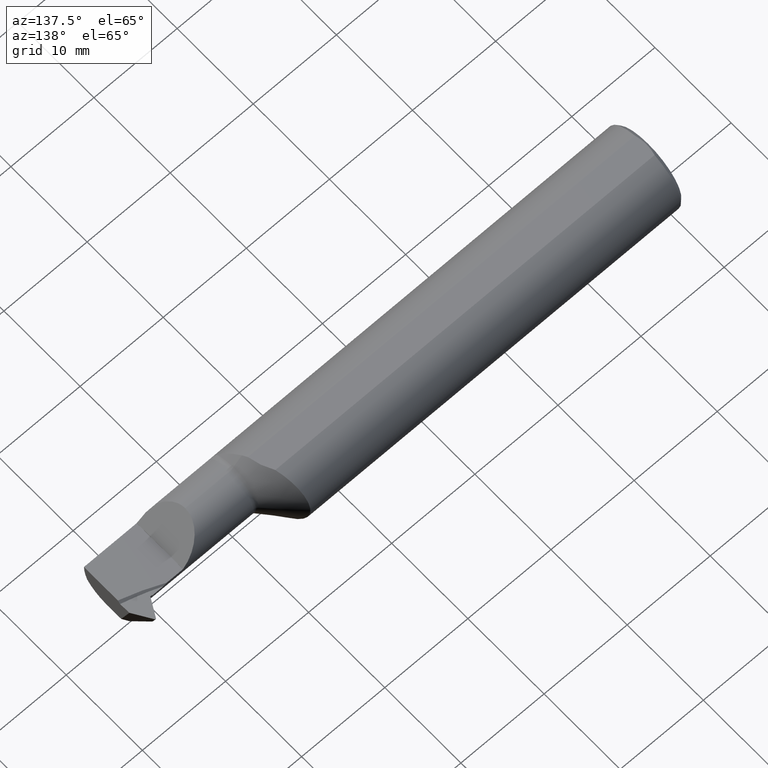
[diagram: clean part render]
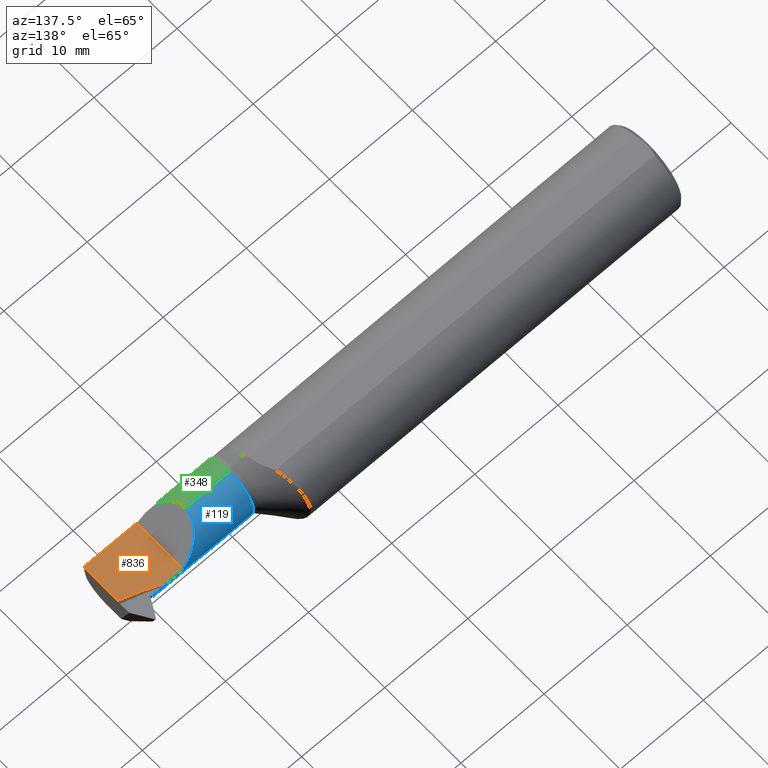
[diagram: same view with three faces highlighted in distinct colors, each labeled with its STEP entity id]
A machine part, auxiliary view with three faces highlighted in distinct colors.
Their STEP definitions:

[orange] entity #836 — the highlighted planar face has unit normal (-0, 0, -1).
#4 = ORIENTED_EDGE ( 'NONE', *, *, #408, .F. ) ;
#63 = CARTESIAN_POINT ( 'NONE',  ( 2.250000000000000000, -0.1873499999999999610, -6.429183357567478880E-17 ) ) ;
#65 = CARTESIAN_POINT ( 'NONE',  ( 2.250000000000000000, 0.2999999999999999889, -6.429183357567480113E-17 ) ) ;
#87 = EDGE_LOOP ( 'NONE', ( #4, #381, #551, #903, #669 ) ) ;
#95 = VECTOR ( 'NONE', #103, 39.37007874015748143 ) ;
#103 = DIRECTION ( 'NONE',  ( -0.000000000000000000, 1.000000000000000000, -0.000000000000000000 ) ) ;
#141 = VERTEX_POINT ( 'NONE', #500 ) ;
#160 = LINE ( 'NONE', #305, #419 ) ;
#179 = CARTESIAN_POINT ( 'NONE',  ( 2.250000000000000000, 0.2999999999999999889, -6.429183357567480113E-17 ) ) ;
#187 = EDGE_CURVE ( 'NONE', #141, #777, #1026, .T. ) ;
#230 = LINE ( 'NONE', #234, #667 ) ;
#234 = CARTESIAN_POINT ( 'NONE',  ( 2.500000000000000000, -0.1873499999999999888, -6.429183357567480113E-17 ) ) ;
#305 = CARTESIAN_POINT ( 'NONE',  ( 2.500000000000000000, 0.2999999999999999889, -6.429183357567480113E-17 ) ) ;
#309 = PLANE ( 'NONE',  #340 ) ;
#326 = CARTESIAN_POINT ( 'NONE',  ( 2.500000000000000000, -0.01210074471316514681, -6.429183357567480113E-17 ) ) ;
#330 = CARTESIAN_POINT ( 'NONE',  ( 2.500000000000000000, -0.1873499999999998222, -6.429183357567480113E-17 ) ) ;
#340 = AXIS2_PLACEMENT_3D ( 'NONE', #65, #476, #401 ) ;
#354 = DIRECTION ( 'NONE',  ( 1.000000000000000000, 0.000000000000000000, 0.000000000000000000 ) ) ;
#373 = EDGE_CURVE ( 'NONE', #457, #826, #160, .T. ) ;
#381 = ORIENTED_EDGE ( 'NONE', *, *, #187, .F. ) ;
#401 = DIRECTION ( 'NONE',  ( -1.000000000000000000, 0.000000000000000000, 0.000000000000000000 ) ) ;
#402 = CARTESIAN_POINT ( 'NONE',  ( 2.440786647543599308, 0.004644180403842076456, -6.829619984160658046E-17 ) ) ;
#408 = EDGE_CURVE ( 'NONE', #777, #826, #525, .T. ) ;
#419 = VECTOR ( 'NONE', #548, 39.37007874015748143 ) ;
#457 = VERTEX_POINT ( 'NONE', #330 ) ;
#476 = DIRECTION ( 'NONE',  ( -0.000000000000000000, 0.000000000000000000, -1.000000000000000000 ) ) ;
#500 = CARTESIAN_POINT ( 'NONE',  ( 2.250000000000000000, 0.05265000000000016889, -6.429183357567478880E-17 ) ) ;
#508 = LINE ( 'NONE', #179, #95 ) ;
#509 = EDGE_CURVE ( 'NONE', #1043, #141, #508, .T. ) ;
#525 =( BOUNDED_CURVE ( )  B_SPLINE_CURVE ( 3, ( #819, #715, #402, #326 ),
 .UNSPECIFIED., .F., .T. ) 
 B_SPLINE_CURVE_WITH_KNOTS ( ( 4, 4 ),
 ( 5.843042955691012175, 6.009244269921814485 ),
 .UNSPECIFIED. ) 
 CURVE ( )  GEOMETRIC_REPRESENTATION_ITEM ( )  RATIONAL_B_SPLINE_CURVE ( ( 1.000000000000000000, 0.9976994179840419363, 0.9976994179840419363, 1.000000000000000000 ) ) 
 REPRESENTATION_ITEM ( '' )  );
#548 = DIRECTION ( 'NONE',  ( -0.000000000000000000, 1.000000000000000000, -0.000000000000000000 ) ) ;
#551 = ORIENTED_EDGE ( 'NONE', *, *, #509, .F. ) ;
#625 = VECTOR ( 'NONE', #354, 39.37007874015748143 ) ;
#630 = CARTESIAN_POINT ( 'NONE',  ( 2.500000000000000000, -0.01210074471316514681, -6.429183357567480113E-17 ) ) ;
#667 = VECTOR ( 'NONE', #733, 39.37007874015748143 ) ;
#669 = ORIENTED_EDGE ( 'NONE', *, *, #373, .T. ) ;
#707 = CARTESIAN_POINT ( 'NONE',  ( 2.327514123660656242, 0.05265000000000125829, 1.698438635012499297E-16 ) ) ;
#715 = CARTESIAN_POINT ( 'NONE',  ( 2.383158777789711635, 0.02627753127285263959, -6.829619984160658046E-17 ) ) ;
#733 = DIRECTION ( 'NONE',  ( -1.000000000000000000, -0.000000000000000000, -0.000000000000000000 ) ) ;
#754 = EDGE_CURVE ( 'NONE', #457, #1043, #230, .T. ) ;
#777 = VERTEX_POINT ( 'NONE', #707 ) ;
#819 = CARTESIAN_POINT ( 'NONE',  ( 2.327514123660656242, 0.05265000000000125829, 1.698438635012499297E-16 ) ) ;
#826 = VERTEX_POINT ( 'NONE', #630 ) ;
#836 = ADVANCED_FACE ( 'NONE', ( #1054 ), #309, .F. ) ;
#903 = ORIENTED_EDGE ( 'NONE', *, *, #754, .F. ) ;
#932 = CARTESIAN_POINT ( 'NONE',  ( 1.905000000000000027, 0.05265000000000018970, -6.429183357567480113E-17 ) ) ;
#1026 = LINE ( 'NONE', #932, #625 ) ;
#1043 = VERTEX_POINT ( 'NONE', #63 ) ;
#1054 = FACE_OUTER_BOUND ( 'NONE', #87, .T. ) ;

[blue] entity #119 — the highlighted cylindrical surface (edge-blend (fillet) strip) has radius 3.175 mm, axis along (-1, -0, -0).
#20 = CARTESIAN_POINT ( 'NONE',  ( 1.905000000000000027, -0.07234999999999980336, 0.000000000000000000 ) ) ;
#37 = CIRCLE ( 'NONE', #1037, 0.1250000000000000000 ) ;
#59 = CARTESIAN_POINT ( 'NONE',  ( 2.387538840845808252, 0.04250931060636625042, -0.04931874660846848057 ) ) ;
#60 = VERTEX_POINT ( 'NONE', #254 ) ;
#66 = CARTESIAN_POINT ( 'NONE',  ( 2.417803995548856388, -0.07234999999999983111, -0.1249999999999999861 ) ) ;
#73 = EDGE_CURVE ( 'NONE', #966, #60, #916, .T. ) ;
#101 = ORIENTED_EDGE ( 'NONE', *, *, #73, .T. ) ;
#119 = ADVANCED_FACE ( 'NONE', ( #834 ), #415, .T. ) ;
#141 = VERTEX_POINT ( 'NONE', #500 ) ;
#146 = DIRECTION ( 'NONE',  ( -1.000000000000000000, -0.000000000000000000, -0.000000000000000000 ) ) ;
#157 = AXIS2_PLACEMENT_3D ( 'NONE', #433, #531, #948 ) ;
#159 = CARTESIAN_POINT ( 'NONE',  ( 1.905000000000000249, 0.04250931060636869291, -0.04931874660846283231 ) ) ;
#187 = EDGE_CURVE ( 'NONE', #141, #777, #1026, .T. ) ;
#188 = ORIENTED_EDGE ( 'NONE', *, *, #361, .F. ) ;
#191 = DIRECTION ( 'NONE',  ( -1.000000000000000000, -0.000000000000000000, -0.000000000000000000 ) ) ;
#219 = LINE ( 'NONE', #1035, #697 ) ;
#231 = CARTESIAN_POINT ( 'NONE',  ( 2.416828149966954609, -0.02083387788954048706, -0.1250000000000000278 ) ) ;
#251 = VECTOR ( 'NONE', #767, 39.37007874015748143 ) ;
#254 = CARTESIAN_POINT ( 'NONE',  ( 1.915355339059327644, -0.07234999999999978948, -0.1250000000000000000 ) ) ;
#306 = CARTESIAN_POINT ( 'NONE',  ( 2.395411727148820002, 0.05246269245544993992, -0.006840453349105808309 ) ) ;
#314 = CARTESIAN_POINT ( 'NONE',  ( 2.387538840845808252, 0.04250931060636625042, -0.04931874660846848057 ) ) ;
#317 = ORIENTED_EDGE ( 'NONE', *, *, #675, .T. ) ;
#322 = ORIENTED_EDGE ( 'NONE', *, *, #794, .F. ) ;
#327 = ORIENTED_EDGE ( 'NONE', *, *, #1046, .T. ) ;
#333 = EDGE_CURVE ( 'NONE', #777, #334, #816, .T. ) ;
#334 = VERTEX_POINT ( 'NONE', #812 ) ;
#339 = DIRECTION ( 'NONE',  ( 0.000000000000000000, 0.000000000000000000, 1.000000000000000000 ) ) ;
#354 = DIRECTION ( 'NONE',  ( 1.000000000000000000, 0.000000000000000000, 0.000000000000000000 ) ) ;
#361 = EDGE_CURVE ( 'NONE', #966, #986, #790, .T. ) ;
#367 = ORIENTED_EDGE ( 'NONE', *, *, #952, .F. ) ;
#370 = CARTESIAN_POINT ( 'NONE',  ( 2.407893287419842654, 0.04250931060637612446, -0.04931874660847050673 ) ) ;
#380 = CARTESIAN_POINT ( 'NONE',  ( 1.915355339059327644, -0.07234999999999980336, 0.1250000000000000000 ) ) ;
#406 = CARTESIAN_POINT ( 'NONE',  ( 1.905000000000000027, 0.05246269245545003707, -0.006840453349105805707 ) ) ;
#415 = CYLINDRICAL_SURFACE ( 'NONE', #480, 0.1250000000000000000 ) ;
#417 = LINE ( 'NONE', #406, #770 ) ;
#433 = CARTESIAN_POINT ( 'NONE',  ( 1.915355339059327644, -0.07234999999999980336, 0.000000000000000000 ) ) ;
#436 = EDGE_CURVE ( 'NONE', #640, #141, #37, .T. ) ;
#446 = CARTESIAN_POINT ( 'NONE',  ( 2.177079229028278551, 0.05226911685279674036, 0.07357077097172100288 ) ) ;
#454 = LINE ( 'NONE', #159, #996 ) ;
#470 = DIRECTION ( 'NONE',  ( -1.000000000000000000, -0.000000000000000000, -0.000000000000000000 ) ) ;
#472 = CARTESIAN_POINT ( 'NONE',  ( 2.338022056282963224, 0.05258349347814366553, -0.004636286443160015508 ) ) ;
#475 = ORIENTED_EDGE ( 'NONE', *, *, #729, .F. ) ;
#480 = AXIS2_PLACEMENT_3D ( 'NONE', #20, #998, #339 ) ;
#489 =( BOUNDED_CURVE ( )  B_SPLINE_CURVE ( 3, ( #533, #869, #446, #785 ),
 .UNSPECIFIED., .F., .F. ) 
 B_SPLINE_CURVE_WITH_KNOTS ( ( 4, 4 ),
 ( 0.000000000000000000, 1.565596303359943819 ),
 .UNSPECIFIED. ) 
 CURVE ( )  GEOMETRIC_REPRESENTATION_ITEM ( )  RATIONAL_B_SPLINE_CURVE ( ( 1.000000000000000000, 0.8059619166604294893, 0.8059619166604294893, 1.000000000000000000 ) ) 
 REPRESENTATION_ITEM ( '' )  );
#500 = CARTESIAN_POINT ( 'NONE',  ( 2.250000000000000000, 0.05265000000000016889, -6.429183357567478880E-17 ) ) ;
#531 = DIRECTION ( 'NONE',  ( 1.000000000000000000, 0.000000000000000000, 0.000000000000000000 ) ) ;
#533 = CARTESIAN_POINT ( 'NONE',  ( 2.125649999999998929, -0.07234999999999980336, 0.1250000000000000000 ) ) ;
#596 = VERTEX_POINT ( 'NONE', #778 ) ;
#617 = CARTESIAN_POINT ( 'NONE',  ( 2.392692572612126423, 0.05165862385443213689, -0.02151169835146388848 ) ) ;
#619 = CARTESIAN_POINT ( 'NONE',  ( 2.125649999999998929, -0.07234999999999980336, 0.1250000000000000000 ) ) ;
#625 = VECTOR ( 'NONE', #354, 39.37007874015748143 ) ;
#629 = VERTEX_POINT ( 'NONE', #619 ) ;
#638 = CARTESIAN_POINT ( 'NONE',  ( 2.413116357483704011, 0.02218362602543444417, -0.09665559677423288254 ) ) ;
#640 = VERTEX_POINT ( 'NONE', #1031 ) ;
#643 = CARTESIAN_POINT ( 'NONE',  ( 2.407893287419842654, 0.04250931060637612446, -0.04931874660847050673 ) ) ;
#657 = ORIENTED_EDGE ( 'NONE', *, *, #333, .T. ) ;
#675 = EDGE_CURVE ( 'NONE', #60, #953, #857, .T. ) ;
#687 = ORIENTED_EDGE ( 'NONE', *, *, #863, .T. ) ;
#697 = VECTOR ( 'NONE', #470, 39.37007874015748143 ) ;
#707 = CARTESIAN_POINT ( 'NONE',  ( 2.327514123660656242, 0.05265000000000125829, 1.698438635012499297E-16 ) ) ;
#709 = CARTESIAN_POINT ( 'NONE',  ( 2.332742559318552011, 0.05265000000000025909, -0.002355308928330783740 ) ) ;
#729 = EDGE_CURVE ( 'NONE', #986, #817, #454, .T. ) ;
#743 = ORIENTED_EDGE ( 'NONE', *, *, #187, .T. ) ;
#757 = EDGE_LOOP ( 'NONE', ( #188, #101, #317, #322, #327, #1045, #743, #657, #687, #367, #475 ) ) ;
#767 = DIRECTION ( 'NONE',  ( -1.000000000000000000, -0.000000000000000000, -0.000000000000000000 ) ) ;
#770 = VECTOR ( 'NONE', #838, 39.37007874015748143 ) ;
#777 = VERTEX_POINT ( 'NONE', #707 ) ;
#778 = CARTESIAN_POINT ( 'NONE',  ( 2.395411727148820002, 0.05246269245544993992, -0.006840453349105808309 ) ) ;
#785 = CARTESIAN_POINT ( 'NONE',  ( 2.250000000000000000, 0.05264830998857562838, 0.0006500000000000630707 ) ) ;
#790 =( BOUNDED_CURVE ( )  B_SPLINE_CURVE ( 3, ( #66, #231, #638, #643 ),
 .UNSPECIFIED., .F., .T. ) 
 B_SPLINE_CURVE_WITH_KNOTS ( ( 4, 4 ),
 ( 3.324852225049211185, 4.490070511404797848 ),
 .UNSPECIFIED. ) 
 CURVE ( )  GEOMETRIC_REPRESENTATION_ITEM ( )  RATIONAL_B_SPLINE_CURVE ( ( 1.000000000000000000, 0.8900199543065765440, 0.8900199543065765440, 1.000000000000000000 ) ) 
 REPRESENTATION_ITEM ( '' )  );
#794 = EDGE_CURVE ( 'NONE', #629, #953, #219, .T. ) ;
#802 = CARTESIAN_POINT ( 'NONE',  ( 2.417803995548856388, -0.07234999999999983111, -0.1249999999999999861 ) ) ;
#812 = CARTESIAN_POINT ( 'NONE',  ( 2.343327320590187224, 0.05246269245544993992, -0.006840453349105718103 ) ) ;
#816 = B_SPLINE_CURVE_WITH_KNOTS ( 'NONE', 3,
 ( #1048, #709, #472, #1036 ),
 .UNSPECIFIED., .F., .F.,
 ( 4, 4 ),
 ( 0.01394079219641513115, 0.01437322385110835835 ),
 .UNSPECIFIED. ) ;
#817 = VERTEX_POINT ( 'NONE', #314 ) ;
#834 = FACE_OUTER_BOUND ( 'NONE', #757, .T. ) ;
#838 = DIRECTION ( 'NONE',  ( 1.000000000000000000, 0.000000000000000000, 0.000000000000000000 ) ) ;
#857 = CIRCLE ( 'NONE', #157, 0.1250000000000000000 ) ;
#863 = EDGE_CURVE ( 'NONE', #334, #596, #417, .T. ) ;
#869 = CARTESIAN_POINT ( 'NONE',  ( 2.125649999999998929, 0.0005717568805388748661, 0.1250000000000000278 ) ) ;
#916 = LINE ( 'NONE', #1002, #251 ) ;
#920 = CARTESIAN_POINT ( 'NONE',  ( 2.250000000000000000, -0.07234999999999980336, 0.000000000000000000 ) ) ;
#931 =( BOUNDED_CURVE ( )  B_SPLINE_CURVE ( 3, ( #59, #1016, #617, #306 ),
 .UNSPECIFIED., .F., .F. ) 
 B_SPLINE_CURVE_WITH_KNOTS ( ( 4, 4 ),
 ( 1.165218286355570010, 1.516045349879682869 ),
 .UNSPECIFIED. ) 
 CURVE ( )  GEOMETRIC_REPRESENTATION_ITEM ( )  RATIONAL_B_SPLINE_CURVE ( ( 1.000000000000000000, 0.9897696369758307577, 0.9897696369758307577, 1.000000000000000000 ) ) 
 REPRESENTATION_ITEM ( '' )  );
#932 = CARTESIAN_POINT ( 'NONE',  ( 1.905000000000000027, 0.05265000000000018970, -6.429183357567480113E-17 ) ) ;
#948 = DIRECTION ( 'NONE',  ( 0.000000000000000000, 0.000000000000000000, 1.000000000000000000 ) ) ;
#952 = EDGE_CURVE ( 'NONE', #817, #596, #931, .T. ) ;
#953 = VERTEX_POINT ( 'NONE', #380 ) ;
#966 = VERTEX_POINT ( 'NONE', #802 ) ;
#986 = VERTEX_POINT ( 'NONE', #370 ) ;
#996 = VECTOR ( 'NONE', #146, 39.37007874015748143 ) ;
#998 = DIRECTION ( 'NONE',  ( -1.000000000000000000, -0.000000000000000000, -0.000000000000000000 ) ) ;
#1002 = CARTESIAN_POINT ( 'NONE',  ( 1.905000000000000027, -0.07234999999999978948, -0.1250000000000000000 ) ) ;
#1007 = DIRECTION ( 'NONE',  ( 0.000000000000000000, 0.000000000000000000, 1.000000000000000000 ) ) ;
#1016 = CARTESIAN_POINT ( 'NONE',  ( 2.390041152184282591, 0.04830653683766742562, -0.03581748280623598540 ) ) ;
#1026 = LINE ( 'NONE', #932, #625 ) ;
#1031 = CARTESIAN_POINT ( 'NONE',  ( 2.250000000000000000, 0.05264830998857562838, 0.0006500000000000630707 ) ) ;
#1035 = CARTESIAN_POINT ( 'NONE',  ( 1.905000000000000027, -0.07234999999999980336, 0.1250000000000000000 ) ) ;
#1036 = CARTESIAN_POINT ( 'NONE',  ( 2.343327320590187224, 0.05246269245544993992, -0.006840453349105718103 ) ) ;
#1037 = AXIS2_PLACEMENT_3D ( 'NONE', #920, #191, #1007 ) ;
#1045 = ORIENTED_EDGE ( 'NONE', *, *, #436, .T. ) ;
#1046 = EDGE_CURVE ( 'NONE', #629, #640, #489, .T. ) ;
#1048 = CARTESIAN_POINT ( 'NONE',  ( 2.327514123660656242, 0.05265000000000125829, 1.698438635012499297E-16 ) ) ;

[green] entity #348 — the highlighted cylindrical surface (edge-blend (fillet) strip) has radius 3.175 mm, axis along (-1, -0, -0).
#74 = EDGE_LOOP ( 'NONE', ( #311, #646, #281, #659 ) ) ;
#91 = CYLINDRICAL_SURFACE ( 'NONE', #285, 0.1250000000000000000 ) ;
#149 = EDGE_CURVE ( 'NONE', #814, #972, #626, .T. ) ;
#219 = LINE ( 'NONE', #1035, #697 ) ;
#237 = CIRCLE ( 'NONE', #995, 0.1250000000000000000 ) ;
#275 = CARTESIAN_POINT ( 'NONE',  ( 1.915355339059327644, -0.07234999999999980336, 0.000000000000000000 ) ) ;
#281 = ORIENTED_EDGE ( 'NONE', *, *, #450, .T. ) ;
#285 = AXIS2_PLACEMENT_3D ( 'NONE', #396, #378, #722 ) ;
#300 = CARTESIAN_POINT ( 'NONE',  ( 2.173580599499921995, -0.1707639599170699407, 0.07706940050007732301 ) ) ;
#304 = CARTESIAN_POINT ( 'NONE',  ( 1.915355339059327644, -0.1707639599170700795, 0.07706940050007714260 ) ) ;
#311 = ORIENTED_EDGE ( 'NONE', *, *, #518, .T. ) ;
#338 = CARTESIAN_POINT ( 'NONE',  ( 2.125649999999998929, -0.07234999999999980336, 0.1250000000000000000 ) ) ;
#348 = ADVANCED_FACE ( 'NONE', ( #656 ), #91, .T. ) ;
#369 = DIRECTION ( 'NONE',  ( 1.000000000000000000, 0.000000000000000000, 0.000000000000000000 ) ) ;
#378 = DIRECTION ( 'NONE',  ( -1.000000000000000000, -0.000000000000000000, -0.000000000000000000 ) ) ;
#380 = CARTESIAN_POINT ( 'NONE',  ( 1.915355339059327644, -0.07234999999999980336, 0.1250000000000000000 ) ) ;
#396 = CARTESIAN_POINT ( 'NONE',  ( 1.905000000000000027, -0.07234999999999980336, 0.000000000000000000 ) ) ;
#414 = CARTESIAN_POINT ( 'NONE',  ( 2.173580599499921995, -0.1707639599170699407, 0.07706940050007732301 ) ) ;
#425 = CARTESIAN_POINT ( 'NONE',  ( 2.125649999999998929, -0.1114715001235031949, 0.1250000000000000278 ) ) ;
#450 = EDGE_CURVE ( 'NONE', #953, #814, #237, .T. ) ;
#470 = DIRECTION ( 'NONE',  ( -1.000000000000000000, -0.000000000000000000, -0.000000000000000000 ) ) ;
#518 = EDGE_CURVE ( 'NONE', #972, #629, #639, .T. ) ;
#528 = CARTESIAN_POINT ( 'NONE',  ( 2.153999999999999915, -0.1707639599170700795, 0.07706940050007714260 ) ) ;
#610 = VECTOR ( 'NONE', #369, 39.37007874015748143 ) ;
#619 = CARTESIAN_POINT ( 'NONE',  ( 2.125649999999998929, -0.07234999999999980336, 0.1250000000000000000 ) ) ;
#626 = LINE ( 'NONE', #528, #610 ) ;
#629 = VERTEX_POINT ( 'NONE', #619 ) ;
#639 =( BOUNDED_CURVE ( )  B_SPLINE_CURVE ( 3, ( #414, #745, #425, #338 ),
 .UNSPECIFIED., .F., .F. ) 
 B_SPLINE_CURVE_WITH_KNOTS ( ( 4, 4 ),
 ( 5.376748757289210978, 6.283185307179586232 ),
 .UNSPECIFIED. ) 
 CURVE ( )  GEOMETRIC_REPRESENTATION_ITEM ( )  RATIONAL_B_SPLINE_CURVE ( ( 1.000000000000000000, 0.9326950686634385423, 0.9326950686634385423, 1.000000000000000000 ) ) 
 REPRESENTATION_ITEM ( '' )  );
#646 = ORIENTED_EDGE ( 'NONE', *, *, #794, .T. ) ;
#656 = FACE_OUTER_BOUND ( 'NONE', #74, .T. ) ;
#659 = ORIENTED_EDGE ( 'NONE', *, *, #149, .T. ) ;
#673 = DIRECTION ( 'NONE',  ( 1.000000000000000000, 0.000000000000000000, 0.000000000000000000 ) ) ;
#697 = VECTOR ( 'NONE', #470, 39.37007874015748143 ) ;
#722 = DIRECTION ( 'NONE',  ( 0.000000000000000000, 0.000000000000000000, 1.000000000000000000 ) ) ;
#745 = CARTESIAN_POINT ( 'NONE',  ( 2.142779785539520976, -0.1466433954276131213, 0.1078702144604782448 ) ) ;
#794 = EDGE_CURVE ( 'NONE', #629, #953, #219, .T. ) ;
#814 = VERTEX_POINT ( 'NONE', #304 ) ;
#953 = VERTEX_POINT ( 'NONE', #380 ) ;
#972 = VERTEX_POINT ( 'NONE', #300 ) ;
#995 = AXIS2_PLACEMENT_3D ( 'NONE', #275, #673, #1004 ) ;
#1004 = DIRECTION ( 'NONE',  ( 0.000000000000000000, 0.000000000000000000, 1.000000000000000000 ) ) ;
#1035 = CARTESIAN_POINT ( 'NONE',  ( 1.905000000000000027, -0.07234999999999980336, 0.1250000000000000000 ) ) ;